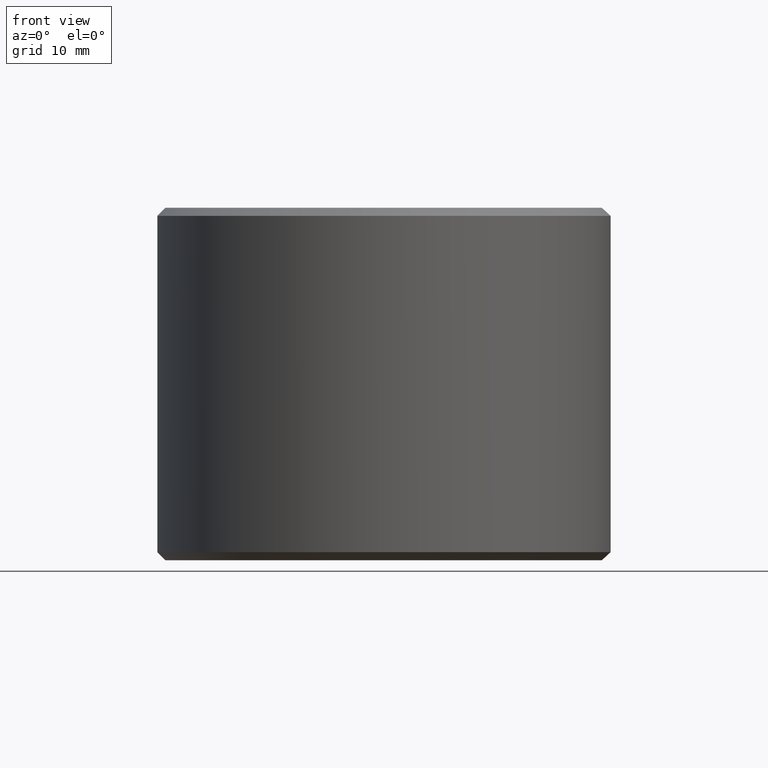
[diagram: clean part render]
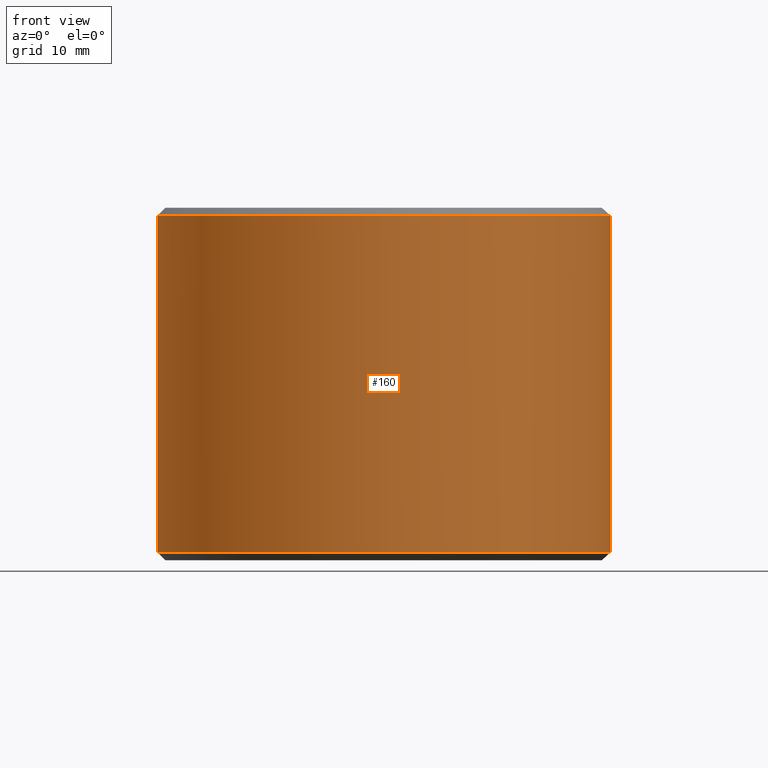
[diagram: same view with one face highlighted and labeled with its STEP entity id]
A machine part, front view. The second image highlights one B-rep face of the part: STEP entity #160.
In plain terms, the highlighted cylindrical surface (bore or boss wall) has radius 22.5 mm, axis along (-0, 0, -1).
Its self-contained STEP definition (entity closure, byte-faithful):
#160=ADVANCED_FACE('',(#186,#187),#188,.T.);
#186=FACE_OUTER_BOUND('',#3210,.T.);
#187=FACE_OUTER_BOUND('',#3211,.T.);
#188=CYLINDRICAL_SURFACE('',#3212,0.0225);
#3210=EDGE_LOOP('',(#6259));
#3211=EDGE_LOOP('',(#6260));
#3212=AXIS2_PLACEMENT_3D('',#6261,#6262,#6263);
#6259=ORIENTED_EDGE('',*,*,#6304,.T.);
#6260=ORIENTED_EDGE('',*,*,#6305,.F.);
#6261=CARTESIAN_POINT('',(0.0,0.0,-1.0842021724855E-019));
#6262=DIRECTION('',(0.0,-6.12323399573677E-017,-1.0));
#6263=DIRECTION('',(0.0,1.0,-6.12323399573677E-017));
#6304=EDGE_CURVE('',#6336,#6336,#6337,.T.);
#6305=EDGE_CURVE('',#6338,#6338,#6339,.T.);
#6336=VERTEX_POINT('',#6598);
#6337=CIRCLE('',#6599,0.0225);
#6338=VERTEX_POINT('',#6600);
#6339=CIRCLE('',#6601,0.0225);
#6598=CARTESIAN_POINT('',(0.0,0.0225,0.0342));
#6599=AXIS2_PLACEMENT_3D('',#6634,#6635,#6636);
#6600=CARTESIAN_POINT('',(0.0,0.0225,0.0008));
#6601=AXIS2_PLACEMENT_3D('',#6637,#6638,#6639);
#6634=CARTESIAN_POINT('',(0.0,0.0,0.0342));
#6635=DIRECTION('',(0.0,-6.12323399573677E-017,-1.0));
#6636=DIRECTION('',(0.0,1.0,-6.12323399573677E-017));
#6637=CARTESIAN_POINT('',(0.0,0.0,0.0008));
#6638=DIRECTION('',(0.0,-6.12323399573677E-017,-1.0));
#6639=DIRECTION('',(0.0,1.0,-6.12323399573677E-017));